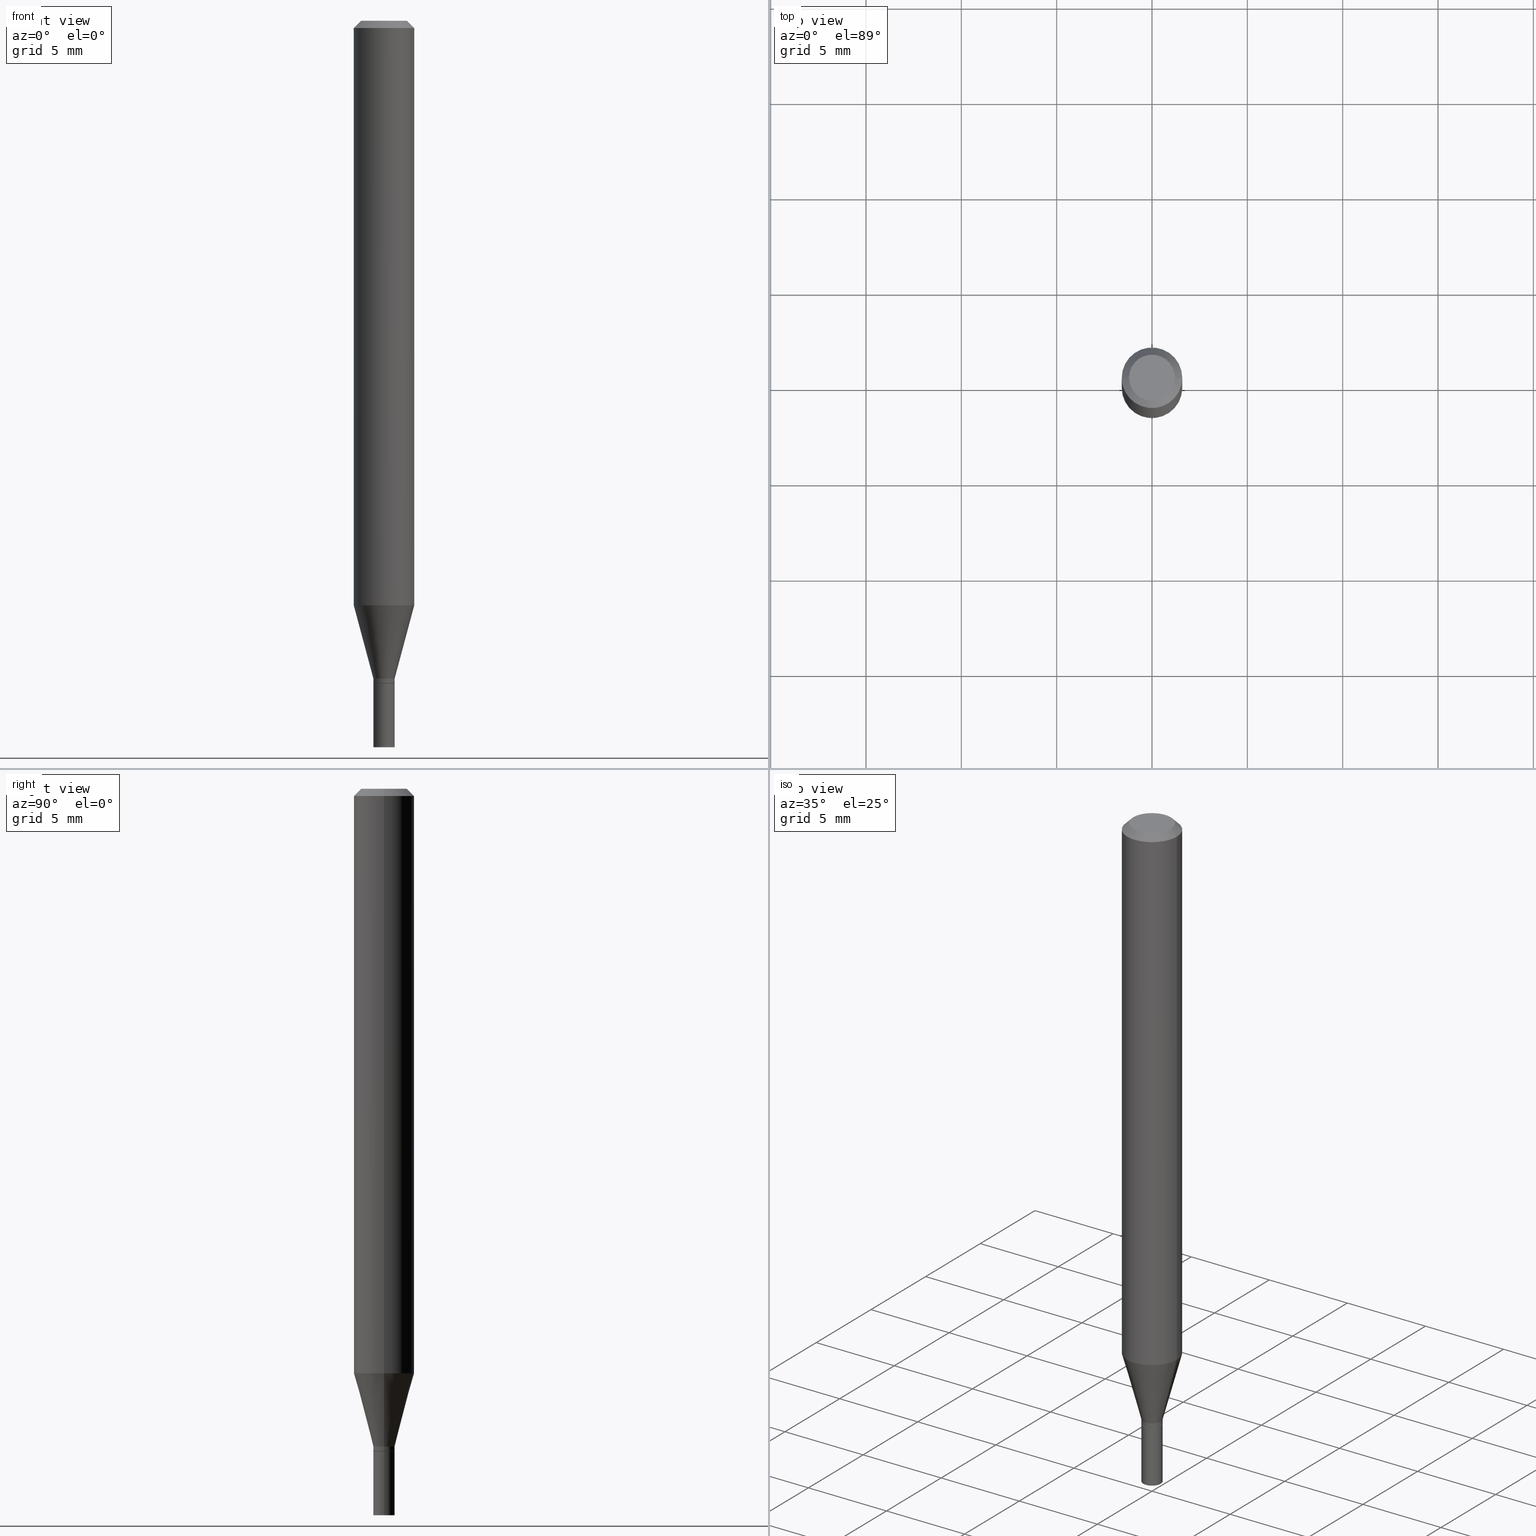
[diagram: canonical four-view strip — front | top / right | iso, engineering-drawing reading convention]
A machine part, canonical four-view strip (front | top / right | iso — engineering-drawing reading convention). The complete STEP part file that produces these views, byte-faithful:
ISO-10303-21;
HEADER;
FILE_DESCRIPTION (( 'STEP AP203' ),
    '1' );
FILE_NAME ('02473.STEP',
    '2024-03-18T20:48:39',
    ( '' ),
    ( '' ),
    'SwSTEP 2.0',
    'SolidWorks 2023',
    '' );
FILE_SCHEMA (( 'CONFIG_CONTROL_DESIGN' ));
ENDSEC;

DATA;
#1 = DIRECTION ( 'NONE',  ( 0.7071067811865656694, -2.468850131082446387E-15, 0.7071067811865294761 ) ) ;
#2 = COORDINATED_UNIVERSAL_TIME_OFFSET ( 5, 0, .BEHIND. ) ;
#3 = DIRECTION ( 'NONE',  ( -2.445468806185136597E-29, 3.491481338843145583E-15, 1.000000000000000000 ) ) ;
#4 = CC_DESIGN_PERSON_AND_ORGANIZATION_ASSIGNMENT ( #307, #378, ( #339 ) ) ;
#5 = CARTESIAN_POINT ( 'NONE',  ( 3.345401326861266963E-29, -4.776346471537423880E-15, -1.368000000000000105 ) ) ;
#6 = CARTESIAN_POINT ( 'NONE',  ( 2.951318778562602676E-29, -4.213701035264222282E-15, -1.206851942293460711 ) ) ;
#7 = EDGE_CURVE ( 'NONE', #160, #166, #122, .T. ) ;
#8 = CARTESIAN_POINT ( 'NONE',  ( 3.668203209277705088E-31, -5.237222008264718399E-17, -0.01499999999999999944 ) ) ;
#9 = VECTOR ( 'NONE', #84, 39.37007874015747433 ) ;
#10 = CC_DESIGN_SECURITY_CLASSIFICATION ( #421, ( #33 ) ) ;
#11 = DIRECTION ( 'NONE',  ( -2.445468806185136877E-29, 3.491481338843145188E-15, 1.000000000000000000 ) ) ;
#12 = CYLINDRICAL_SURFACE ( 'NONE', #286, 0.02199999999999999872 ) ;
#13 = ORIENTED_EDGE ( 'NONE', *, *, #359, .F. ) ;
#14 = EDGE_LOOP ( 'NONE', ( #213, #128 ) ) ;
#15 = DIRECTION ( 'NONE',  ( 1.000000000000000000, -6.982962677686266711E-15, 0.000000000000000000 ) ) ;
#16 = DIRECTION ( 'NONE',  ( -2.438088387897960049E-29, 3.491481338843145188E-15, 1.000000000000000000 ) ) ;
#17 = AXIS2_PLACEMENT_3D ( 'NONE', #151, #3, #142 ) ;
#18 = CARTESIAN_POINT ( 'NONE',  ( -0.02149999999999999481, -4.620930556174890609E-15, -1.368000000000000105 ) ) ;
#19 = CC_DESIGN_DATE_AND_TIME_ASSIGNMENT ( #465, #178, ( #269 ) ) ;
#20 = CARTESIAN_POINT ( 'NONE',  ( 3.345401326861266963E-29, -4.776346471537423880E-15, -1.368000000000000105 ) ) ;
#21 = CARTESIAN_POINT ( 'NONE',  ( 3.320946638799415978E-29, -4.741431658148991442E-15, -1.358000000000000096 ) ) ;
#22 = APPLICATION_PROTOCOL_DEFINITION ( 'international standard', 'config_control_design', 1994, #358 ) ;
#23 = EDGE_LOOP ( 'NONE', ( #193, #65, #329, #105 ) ) ;
#24 = LINE ( 'NONE', #241, #221 ) ;
#25 = DIMENSIONAL_EXPONENTS ( 1.000000000000000000, 0.000000000000000000, 0.000000000000000000, 0.000000000000000000, 0.000000000000000000, 0.000000000000000000, 0.000000000000000000 ) ;
#26 = EDGE_CURVE ( 'NONE', #160, #440, #373, .T. ) ;
#27 = DATE_AND_TIME ( #248, #124 ) ;
#28 = COORDINATED_UNIVERSAL_TIME_OFFSET ( 5, 0, .BEHIND. ) ;
#29 = PLANE ( 'NONE',  #394 ) ;
#30 = EDGE_CURVE ( 'NONE', #166, #143, #59, .T. ) ;
#31 = DIRECTION ( 'NONE',  ( 1.000000000000000000, -6.982962677686269866E-15, 0.000000000000000000 ) ) ;
#32 = AXIS2_PLACEMENT_3D ( 'NONE', #214, #350, #31 ) ;
#33 = PRODUCT_DEFINITION_FORMATION_WITH_SPECIFIED_SOURCE ( 'ANY', '', #339, .NOT_KNOWN. ) ;
#34 = PERSON ( 'UNSPECIFIED', 'UNSPECIFIED', 'UNSPECIFIED', ('UNSPECIFIED'), ('UNSPECIFIED'), ('UNSPECIFIED') ) ;
#35 = CARTESIAN_POINT ( 'NONE',  ( -0.02199999999999999872, -4.850464838033848848E-15, -1.500000000000000222 ) ) ;
#36 = ADVANCED_FACE ( 'NONE', ( #202 ), #168, .T. ) ;
#37 = ADVANCED_FACE ( 'NONE', ( #158 ), #337, .T. ) ;
#38 = CIRCLE ( 'NONE', #256, 0.02199999999999992240 ) ;
#39 = CARTESIAN_POINT ( 'NONE',  ( 3.668203209277705088E-31, -5.237222008264718399E-17, -0.01499999999999999944 ) ) ;
#40 = LINE ( 'NONE', #324, #154 ) ;
#41 = DIRECTION ( 'NONE',  ( -2.445468806185136597E-29, 3.491481338843145583E-15, 1.000000000000000000 ) ) ;
#42 = CC_DESIGN_PERSON_AND_ORGANIZATION_ASSIGNMENT ( #320, #388, ( #33 ) ) ;
#43 = CARTESIAN_POINT ( 'NONE',  ( 3.668203209277704895E-29, -5.237222008264718177E-15, -1.500000000000000222 ) ) ;
#44 = CARTESIAN_POINT ( 'NONE',  ( 0.000000000000000000, 0.000000000000000000, 0.000000000000000000 ) ) ;
#45 = DIRECTION ( 'NONE',  ( -1.000000000000000000, 6.982962677686265922E-15, -4.876176775795935793E-29 ) ) ;
#46 = FACE_OUTER_BOUND ( 'NONE', #424, .T. ) ;
#47 = AXIS2_PLACEMENT_3D ( 'NONE', #251, #433, #309 ) ;
#48 = ORIENTED_EDGE ( 'NONE', *, *, #182, .T. ) ;
#49 = DIRECTION ( 'NONE',  ( -2.445468806185136597E-29, 3.491481338843145583E-15, 1.000000000000000000 ) ) ;
#50 = ORIENTED_EDGE ( 'NONE', *, *, #459, .T. ) ;
#51 = DIRECTION ( 'NONE',  ( -2.445468806185136877E-29, 3.491481338843145188E-15, 1.000000000000000000 ) ) ;
#52 = DIRECTION ( 'NONE',  ( -2.445468806185136597E-29, 3.491481338843145583E-15, 1.000000000000000000 ) ) ;
#53 = ORIENTED_EDGE ( 'NONE', *, *, #445, .F. ) ;
#54 = CARTESIAN_POINT ( 'NONE',  ( 0.000000000000000000, 0.000000000000000000, 0.000000000000000000 ) ) ;
#55 = ADVANCED_FACE ( 'NONE', ( #274 ), #335, .T. ) ;
#56 = DIRECTION ( 'NONE',  ( -2.445468806185136597E-29, 3.491481338843145583E-15, 1.000000000000000000 ) ) ;
#57 = ORIENTED_EDGE ( 'NONE', *, *, #381, .T. ) ;
#58 = AXIS2_PLACEMENT_3D ( 'NONE', #100, #414, #406 ) ;
#59 = LINE ( 'NONE', #306, #115 ) ;
#60 = DIRECTION ( 'NONE',  ( -2.445468806185136597E-29, 3.491481338843145583E-15, 1.000000000000000000 ) ) ;
#61 = ORIENTED_EDGE ( 'NONE', *, *, #210, .T. ) ;
#62 = CARTESIAN_POINT ( 'NONE',  ( 0.000000000000000000, 0.000000000000000000, 0.000000000000000000 ) ) ;
#63 = ORIENTED_EDGE ( 'NONE', *, *, #117, .T. ) ;
#64 = CLOSED_SHELL ( 'NONE', ( #297, #367, #393, #36, #37, #280, #88, #150, #333, #398, #188, #55 ) ) ;
#65 = ORIENTED_EDGE ( 'NONE', *, *, #30, .T. ) ;
#66 = CONICAL_SURFACE ( 'NONE', #458, 0.02149999999999999481, 0.7853981633974739252 ) ;
#67 = DATE_AND_TIME ( #136, #287 ) ;
#68 = VERTEX_POINT ( 'NONE', #18 ) ;
#69 = CARTESIAN_POINT ( 'NONE',  ( 0.04749999999999999362, -4.035134999187581581E-16, -1.989643822619502098E-16 ) ) ;
#70 =( NAMED_UNIT ( * ) PLANE_ANGLE_UNIT ( ) SI_UNIT ( $, .RADIAN. ) );
#71 = EDGE_CURVE ( 'NONE', #166, #160, #355, .T. ) ;
#72 = AXIS2_PLACEMENT_3D ( 'NONE', #39, #41, #183 ) ;
#73 = APPROVAL_DATE_TIME ( #255, #319 ) ;
#74 = APPROVAL ( #450, 'UNSPECIFIED' ) ;
#75 = CARTESIAN_POINT ( 'NONE',  ( -0.02199999999999999872, -4.850464838033848848E-15, -1.368000000000000105 ) ) ;
#76 = PERSON_AND_ORGANIZATION ( #34, #310 ) ;
#77 = CARTESIAN_POINT ( 'NONE',  ( -0.06250000000000000000, 4.440892098500626162E-16, -3.074334431409316114E-30 ) ) ;
#78 = CIRCLE ( 'NONE', #72, 0.06250000000000000000 ) ;
#79 = CARTESIAN_POINT ( 'NONE',  ( 3.345401326861266963E-29, -4.776346471537423880E-15, -1.368000000000000105 ) ) ;
#80 = DIRECTION ( 'NONE',  ( -2.445468806185136597E-29, 3.491481338843145583E-15, 1.000000000000000000 ) ) ;
#81 = LINE ( 'NONE', #396, #9 ) ;
#82 = ORIENTED_EDGE ( 'NONE', *, *, #227, .F. ) ;
#83 = CIRCLE ( 'NONE', #260, 0.04749999999999999362 ) ;
#84 = DIRECTION ( 'NONE',  ( -0.2588190451025213501, 5.211531920934551042E-15, 0.9659258262890682012 ) ) ;
#85 = ORIENTED_EDGE ( 'NONE', *, *, #152, .T. ) ;
#86 = CARTESIAN_POINT ( 'NONE',  ( 0.02199999999999992240, -4.895056837058089278E-15, -1.358000000000000096 ) ) ;
#87 = CARTESIAN_POINT ( 'NONE',  ( 3.320946638799415978E-29, -4.741431658148991442E-15, -1.358000000000000096 ) ) ;
#88 = ADVANCED_FACE ( 'NONE', ( #197 ), #372, .T. ) ;
#89 = VERTEX_POINT ( 'NONE', #129 ) ;
#90 = ORIENTED_EDGE ( 'NONE', *, *, #258, .T. ) ;
#91 = ORIENTED_EDGE ( 'NONE', *, *, #445, .T. ) ;
#92 = EDGE_LOOP ( 'NONE', ( #365, #61, #97, #343 ) ) ;
#93 = AXIS2_PLACEMENT_3D ( 'NONE', #399, #230, #371 ) ;
#94 = ORIENTED_EDGE ( 'NONE', *, *, #71, .F. ) ;
#95 = DIRECTION ( 'NONE',  ( 0.2588190451025213501, 1.565188264969621968E-15, 0.9659258262890682012 ) ) ;
#96 = EDGE_CURVE ( 'NONE', #440, #463, #437, .T. ) ;
#97 = ORIENTED_EDGE ( 'NONE', *, *, #96, .T. ) ;
#98 = DIRECTION ( 'NONE',  ( -2.445468806185136597E-29, 3.491481338843145583E-15, 1.000000000000000000 ) ) ;
#99 = ORIENTED_EDGE ( 'NONE', *, *, #220, .F. ) ;
#100 = CARTESIAN_POINT ( 'NONE',  ( 0.000000000000000000, 0.000000000000000000, 0.000000000000000000 ) ) ;
#101 = ORIENTED_EDGE ( 'NONE', *, *, #182, .F. ) ;
#102 = VERTEX_POINT ( 'NONE', #405 ) ;
#103 = DIRECTION ( 'NONE',  ( -2.445468806185136597E-29, 3.491481338843145583E-15, 1.000000000000000000 ) ) ;
#104 = EDGE_CURVE ( 'NONE', #102, #294, #24, .T. ) ;
#105 = ORIENTED_EDGE ( 'NONE', *, *, #26, .F. ) ;
#106 = PERSON_AND_ORGANIZATION_ROLE ( 'creator' ) ;
#107 = DIRECTION ( 'NONE',  ( 0.7071067811865522357, -7.319954787623271823E-15, -0.7071067811865427988 ) ) ;
#108 = CARTESIAN_POINT ( 'NONE',  ( -0.02149999999999999481, -4.623579783349001810E-15, -1.368000000000000105 ) ) ;
#109 = CALENDAR_DATE ( 2024, 18, 3 ) ;
#110 = CALENDAR_DATE ( 2024, 18, 3 ) ;
#111 = CONICAL_SURFACE ( 'NONE', #175, 0.06250000000000000000, 0.7853981633974549403 ) ;
#112 = ADVANCED_FACE ( 'NONE', ( #376 ), #206, .F. ) ;
#113 = AXIS2_PLACEMENT_3D ( 'NONE', #370, #16, #161 ) ;
#114 = CARTESIAN_POINT ( 'NONE',  ( -0.06250000000000000000, -1.688947417823372262E-15, -0.01499999999999999944 ) ) ;
#115 = VECTOR ( 'NONE', #342, 39.37007874015748143 ) ;
#116 = VECTOR ( 'NONE', #95, 39.37007874015747433 ) ;
#117 = EDGE_CURVE ( 'NONE', #68, #377, #426, .T. ) ;
#118 = DIRECTION ( 'NONE',  ( 1.000000000000000000, -6.982962677686270655E-15, 0.000000000000000000 ) ) ;
#119 = CARTESIAN_POINT ( 'NONE',  ( -0.06250000000000000000, 3.840629472727444916E-16, -0.01499999999999999944 ) ) ;
#120 = ORIENTED_EDGE ( 'NONE', *, *, #137, .F. ) ;
#121 = DIRECTION ( 'NONE',  ( -2.445468806185136877E-29, 3.491481338843145188E-15, 1.000000000000000000 ) ) ;
#122 = CIRCLE ( 'NONE', #315, 0.02199999999999992240 ) ;
#123 = DIRECTION ( 'NONE',  ( -2.445468806185136877E-29, 3.491481338843145188E-15, 1.000000000000000000 ) ) ;
#124 = LOCAL_TIME ( 16, 48, 39.00000000000000000, #28 ) ;
#125 = ORIENTED_EDGE ( 'NONE', *, *, #220, .T. ) ;
#126 = VERTEX_POINT ( 'NONE', #75 ) ;
#127 = EDGE_LOOP ( 'NONE', ( #447, #120, #125, #85 ) ) ;
#128 = ORIENTED_EDGE ( 'NONE', *, *, #416, .T. ) ;
#129 = CARTESIAN_POINT ( 'NONE',  ( -0.04749999999999999362, 3.578768372314206562E-16, -1.989643822619551895E-16 ) ) ;
#130 = AXIS2_PLACEMENT_3D ( 'NONE', #43, #356, #184 ) ;
#131 = VERTEX_POINT ( 'NONE', #35 ) ;
#132 = CIRCLE ( 'NONE', #257, 0.02149999999999999481 ) ;
#133 = PERSON_AND_ORGANIZATION ( #34, #310 ) ;
#134 = DIRECTION ( 'NONE',  ( 2.445468806185136597E-29, -3.491481338843145583E-15, -1.000000000000000000 ) ) ;
#135 = ORIENTED_EDGE ( 'NONE', *, *, #7, .F. ) ;
#136 = CALENDAR_DATE ( 2024, 18, 3 ) ;
#137 = EDGE_CURVE ( 'NONE', #89, #283, #83, .T. ) ;
#138 = ORIENTED_EDGE ( 'NONE', *, *, #104, .F. ) ;
#139 = AXIS2_PLACEMENT_3D ( 'NONE', #326, #223, #253 ) ;
#140 = DATE_TIME_ROLE ( 'classification_date' ) ;
#141 = AXIS2_PLACEMENT_3D ( 'NONE', #457, #134, #276 ) ;
#142 = DIRECTION ( 'NONE',  ( 1.000000000000000000, -6.982962677686266711E-15, 4.876176775795934672E-29 ) ) ;
#143 = VERTEX_POINT ( 'NONE', #353 ) ;
#144 = APPROVAL_DATE_TIME ( #67, #74 ) ;
#145 = DESIGN_CONTEXT ( 'detailed design', #384, 'design' ) ;
#146 =( LENGTH_UNIT ( ) NAMED_UNIT ( * ) SI_UNIT ( $, .METRE. ) );
#147 = EDGE_CURVE ( 'NONE', #377, #160, #259, .T. ) ;
#148 = PERSON_AND_ORGANIZATION ( #34, #310 ) ;
#149 = CARTESIAN_POINT ( 'NONE',  ( -0.06250000000000000000, -3.769611825414159666E-15, -1.206851942293460711 ) ) ;
#150 = ADVANCED_FACE ( 'NONE', ( #289 ), #111, .T. ) ;
#151 = CARTESIAN_POINT ( 'NONE',  ( 0.000000000000000000, 0.000000000000000000, 0.000000000000000000 ) ) ;
#152 = EDGE_CURVE ( 'NONE', #375, #252, #78, .T. ) ;
#153 = DIRECTION ( 'NONE',  ( 1.000000000000000000, -6.982962677686270655E-15, 0.000000000000000000 ) ) ;
#154 = VECTOR ( 'NONE', #11, 39.37007874015748143 ) ;
#155 = DIRECTION ( 'NONE',  ( -2.445468806185136877E-29, 3.491481338843145188E-15, 1.000000000000000000 ) ) ;
#156 = CARTESIAN_POINT ( 'NONE',  ( 0.000000000000000000, 0.000000000000000000, 0.000000000000000000 ) ) ;
#157 = ORIENTED_EDGE ( 'NONE', *, *, #349, .F. ) ;
#158 = FACE_OUTER_BOUND ( 'NONE', #347, .T. ) ;
#159 = CARTESIAN_POINT ( 'NONE',  ( 3.668203209277705088E-31, -5.237222008264718399E-17, -0.01499999999999999944 ) ) ;
#160 = VERTEX_POINT ( 'NONE', #285 ) ;
#161 = DIRECTION ( 'NONE',  ( 1.000000000000000000, -6.982962677686265922E-15, 4.876176775795935793E-29 ) ) ;
#162 = CONICAL_SURFACE ( 'NONE', #32, 0.02199999999999992240, 0.2617993877991500740 ) ;
#163 = DIRECTION ( 'NONE',  ( 1.000000000000000000, -6.982962677686269866E-15, 0.000000000000000000 ) ) ;
#164 = DIRECTION ( 'NONE',  ( -2.438088387897960049E-29, 3.491481338843145188E-15, 1.000000000000000000 ) ) ;
#165 = ADVANCED_BREP_SHAPE_REPRESENTATION ( '02473', ( #304, #461, #58 ), #411 ) ;
#166 = VERTEX_POINT ( 'NONE', #430 ) ;
#167 = EDGE_LOOP ( 'NONE', ( #302, #233, #267, #99 ) ) ;
#168 = CYLINDRICAL_SURFACE ( 'NONE', #400, 0.06250000000000000000 ) ;
#169 = CIRCLE ( 'NONE', #431, 0.02199999999999999872 ) ;
#170 = CC_DESIGN_APPROVAL ( #319, ( #33 ) ) ;
#171 = ADVANCED_FACE ( 'NONE', ( #225 ), #361, .T. ) ;
#172 = EDGE_CURVE ( 'NONE', #252, #375, #229, .T. ) ;
#173 = DIRECTION ( 'NONE',  ( -2.445468806185136597E-29, 3.491481338843145583E-15, 1.000000000000000000 ) ) ;
#174 = EDGE_LOOP ( 'NONE', ( #13, #48, #249, #190 ) ) ;
#175 = AXIS2_PLACEMENT_3D ( 'NONE', #8, #434, #354 ) ;
#176 = CONICAL_SURFACE ( 'NONE', #141, 0.06250000000000000000, 0.7853981633974549403 ) ;
#177 = CC_DESIGN_DATE_AND_TIME_ASSIGNMENT ( #27, #140, ( #421 ) ) ;
#178 = DATE_TIME_ROLE ( 'creation_date' ) ;
#179 = CARTESIAN_POINT ( 'NONE',  ( 0.02149999999999999481, -4.926480169107677920E-15, -1.368000000000000105 ) ) ;
#180 = AXIS2_PLACEMENT_3D ( 'NONE', #54, #303, #446 ) ;
#181 = CARTESIAN_POINT ( 'NONE',  ( 3.345401326861266963E-29, -4.776346471537423880E-15, -1.368000000000000105 ) ) ;
#182 = EDGE_CURVE ( 'NONE', #131, #102, #238, .T. ) ;
#183 = DIRECTION ( 'NONE',  ( 1.000000000000000000, -6.982962677686266711E-15, 0.000000000000000000 ) ) ;
#184 = DIRECTION ( 'NONE',  ( 1.000000000000000000, -6.982962677686245411E-15, 0.000000000000000000 ) ) ;
#185 = DIRECTION ( 'NONE',  ( -2.445468806185136597E-29, 3.491481338843145583E-15, 1.000000000000000000 ) ) ;
#186 = FACE_OUTER_BOUND ( 'NONE', #341, .T. ) ;
#187 = AXIS2_PLACEMENT_3D ( 'NONE', #6, #103, #153 ) ;
#188 = ADVANCED_FACE ( 'NONE', ( #46 ), #66, .T. ) ;
#189 = DIRECTION ( 'NONE',  ( -2.445468806185136597E-29, 3.491481338843145583E-15, 1.000000000000000000 ) ) ;
#190 = ORIENTED_EDGE ( 'NONE', *, *, #268, .F. ) ;
#191 = CARTESIAN_POINT ( 'NONE',  ( 0.06250000000000000000, -4.888073874380388472E-16, -0.01499999999999999944 ) ) ;
#192 = SECURITY_CLASSIFICATION_LEVEL ( 'unclassified' ) ;
#193 = ORIENTED_EDGE ( 'NONE', *, *, #7, .T. ) ;
#194 = DIRECTION ( 'NONE',  ( -2.445468806185136597E-29, 3.491481338843145583E-15, 1.000000000000000000 ) ) ;
#195 = CARTESIAN_POINT ( 'NONE',  ( 2.951318778562602676E-29, -4.213701035264222282E-15, -1.206851942293460711 ) ) ;
#196 = ORIENTED_EDGE ( 'NONE', *, *, #459, .F. ) ;
#197 = FACE_OUTER_BOUND ( 'NONE', #234, .T. ) ;
#198 = AXIS2_PLACEMENT_3D ( 'NONE', #181, #173, #460 ) ;
#199 = FACE_OUTER_BOUND ( 'NONE', #231, .T. ) ;
#200 = VECTOR ( 'NONE', #462, 39.37007874015748143 ) ;
#201 = DIRECTION ( 'NONE',  ( 1.000000000000000000, -6.982962677686266711E-15, 0.000000000000000000 ) ) ;
#202 = FACE_OUTER_BOUND ( 'NONE', #417, .T. ) ;
#203 = EDGE_CURVE ( 'NONE', #143, #262, #81, .T. ) ;
#204 = CARTESIAN_POINT ( 'NONE',  ( 0.02199999999999992240, -4.895056837058089278E-15, -1.358000000000000096 ) ) ;
#205 = PERSON_AND_ORGANIZATION ( #34, #310 ) ;
#206 = PLANE ( 'NONE',  #113 ) ;
#207 = SHAPE_DEFINITION_REPRESENTATION ( #277, #165 ) ;
#208 = APPROVAL_ROLE ( '' ) ;
#209 = AXIS2_PLACEMENT_3D ( 'NONE', #44, #185, #254 ) ;
#210 = EDGE_CURVE ( 'NONE', #143, #440, #38, .T. ) ;
#211 =( NAMED_UNIT ( * ) SI_UNIT ( $, .STERADIAN. ) SOLID_ANGLE_UNIT ( ) );
#212 = ORIENTED_EDGE ( 'NONE', *, *, #359, .T. ) ;
#213 = ORIENTED_EDGE ( 'NONE', *, *, #137, .T. ) ;
#214 = CARTESIAN_POINT ( 'NONE',  ( 3.320946638799415978E-29, -4.741431658148991442E-15, -1.358000000000000096 ) ) ;
#215 = ORIENTED_EDGE ( 'NONE', *, *, #117, .F. ) ;
#216 = EDGE_CURVE ( 'NONE', #294, #126, #169, .T. ) ;
#217 = ORIENTED_EDGE ( 'NONE', *, *, #348, .T. ) ;
#218 = VECTOR ( 'NONE', #1, 39.37007874015748143 ) ;
#219 = LINE ( 'NONE', #77, #351 ) ;
#220 = EDGE_CURVE ( 'NONE', #89, #375, #232, .T. ) ;
#221 = VECTOR ( 'NONE', #121, 39.37007874015748143 ) ;
#222 = CC_DESIGN_APPROVAL ( #74, ( #421 ) ) ;
#223 = DIRECTION ( 'NONE',  ( 2.438088387897960049E-29, -3.491481338843145188E-15, -1.000000000000000000 ) ) ;
#224 = FACE_OUTER_BOUND ( 'NONE', #23, .T. ) ;
#225 = FACE_OUTER_BOUND ( 'NONE', #317, .T. ) ;
#226 = FACE_OUTER_BOUND ( 'NONE', #14, .T. ) ;
#227 = EDGE_CURVE ( 'NONE', #463, #262, #296, .T. ) ;
#228 = CARTESIAN_POINT ( 'NONE',  ( 3.345401326861266963E-29, -4.776346471537423880E-15, -1.368000000000000105 ) ) ;
#229 = CIRCLE ( 'NONE', #379, 0.06250000000000000000 ) ;
#230 = DIRECTION ( 'NONE',  ( -2.445468806185136597E-29, 3.491481338843145583E-15, 1.000000000000000000 ) ) ;
#231 = EDGE_LOOP ( 'NONE', ( #53, #215 ) ) ;
#232 = LINE ( 'NONE', #119, #322 ) ;
#233 = ORIENTED_EDGE ( 'NONE', *, *, #314, .T. ) ;
#234 = EDGE_LOOP ( 'NONE', ( #313, #295, #90, #334 ) ) ;
#235 = CARTESIAN_POINT ( 'NONE',  ( 3.345401326861266963E-29, -4.776346471537423880E-15, -1.368000000000000105 ) ) ;
#236 = ADVANCED_FACE ( 'NONE', ( #263 ), #12, .T. ) ;
#237 = ORIENTED_EDGE ( 'NONE', *, *, #96, .F. ) ;
#238 = CIRCLE ( 'NONE', #93, 0.02199999999999999872 ) ;
#239 = LOCAL_TIME ( 16, 48, 39.00000000000000000, #2 ) ;
#240 = ORIENTED_EDGE ( 'NONE', *, *, #216, .F. ) ;
#241 = CARTESIAN_POINT ( 'NONE',  ( 0.02199999999999999872, -1.536251789090978361E-16, 1.072758890675105930E-30 ) ) ;
#242 = DIRECTION ( 'NONE',  ( -2.445468806185136597E-29, 3.491481338843145583E-15, 1.000000000000000000 ) ) ;
#243 = APPROVAL_STATUS ( 'not_yet_approved' ) ;
#244 = CC_DESIGN_PERSON_AND_ORGANIZATION_ASSIGNMENT ( #205, #404, ( #421 ) ) ;
#245 =( CONVERSION_BASED_UNIT ( 'INCH', #247 ) LENGTH_UNIT ( ) NAMED_UNIT ( #25 ) );
#246 = AXIS2_PLACEMENT_3D ( 'NONE', #292, #332, #444 ) ;
#247 = LENGTH_MEASURE_WITH_UNIT ( LENGTH_MEASURE( 0.02539999999999999897 ), #146 );
#248 = CALENDAR_DATE ( 2024, 18, 3 ) ;
#249 = ORIENTED_EDGE ( 'NONE', *, *, #104, .T. ) ;
#250 = COORDINATED_UNIVERSAL_TIME_OFFSET ( 5, 0, .BEHIND. ) ;
#251 = CARTESIAN_POINT ( 'NONE',  ( 3.320946638799415978E-29, -4.741431658148991442E-15, -1.358000000000000096 ) ) ;
#252 = VERTEX_POINT ( 'NONE', #191 ) ;
#253 = DIRECTION ( 'NONE',  ( -1.000000000000000000, 6.982962677686265922E-15, -4.876176775795935793E-29 ) ) ;
#254 = DIRECTION ( 'NONE',  ( 1.000000000000000000, -6.982962677686265922E-15, 4.876176775795936353E-29 ) ) ;
#255 = DATE_AND_TIME ( #109, #338 ) ;
#256 = AXIS2_PLACEMENT_3D ( 'NONE', #87, #189, #368 ) ;
#257 = AXIS2_PLACEMENT_3D ( 'NONE', #235, #56, #201 ) ;
#258 = EDGE_CURVE ( 'NONE', #463, #252, #331, .T. ) ;
#259 = LINE ( 'NONE', #179, #218 ) ;
#260 = AXIS2_PLACEMENT_3D ( 'NONE', #357, #80, #325 ) ;
#261 = CC_DESIGN_PERSON_AND_ORGANIZATION_ASSIGNMENT ( #148, #385, ( #33 ) ) ;
#262 = VERTEX_POINT ( 'NONE', #149 ) ;
#263 = FACE_OUTER_BOUND ( 'NONE', #174, .T. ) ;
#264 = DIRECTION ( 'NONE',  ( 1.000000000000000000, -6.982962677686265922E-15, 4.876176775795936353E-29 ) ) ;
#265 = ORIENTED_EDGE ( 'NONE', *, *, #172, .F. ) ;
#266 = DIRECTION ( 'NONE',  ( -2.445468806185136597E-29, 3.491481338843145583E-15, 1.000000000000000000 ) ) ;
#267 = ORIENTED_EDGE ( 'NONE', *, *, #172, .T. ) ;
#268 = EDGE_CURVE ( 'NONE', #126, #294, #366, .T. ) ;
#269 = PRODUCT_DEFINITION ( 'UNKNOWN', '', #33, #145 ) ;
#270 = ORIENTED_EDGE ( 'NONE', *, *, #147, .T. ) ;
#271 = CARTESIAN_POINT ( 'NONE',  ( 4.865611903635008365E-45, -6.946804277620623666E-31, -1.989643822619527736E-16 ) ) ;
#272 = EDGE_LOOP ( 'NONE', ( #91, #50, #135, #456 ) ) ;
#273 = CONICAL_SURFACE ( 'NONE', #386, 0.02149999999999999481, 0.7853981633974739252 ) ;
#274 = FACE_OUTER_BOUND ( 'NONE', #305, .T. ) ;
#275 = ADVANCED_FACE ( 'NONE', ( #186 ), #279, .F. ) ;
#276 = DIRECTION ( 'NONE',  ( -1.000000000000000000, 6.982962677686266711E-15, 0.000000000000000000 ) ) ;
#277 = PRODUCT_DEFINITION_SHAPE ( 'NONE', 'NONE',  #269 ) ;
#278 = VECTOR ( 'NONE', #107, 39.37007874015748143 ) ;
#279 = PLANE ( 'NONE',  #139 ) ;
#280 = ADVANCED_FACE ( 'NONE', ( #395 ), #162, .T. ) ;
#281 = APPROVAL_ROLE ( '' ) ;
#282 = PRODUCT_RELATED_PRODUCT_CATEGORY ( 'detail', '', ( #339 ) ) ;
#283 = VERTEX_POINT ( 'NONE', #69 ) ;
#284 = DIRECTION ( 'NONE',  ( -2.445468806185136597E-29, 3.491481338843145583E-15, 1.000000000000000000 ) ) ;
#285 = CARTESIAN_POINT ( 'NONE',  ( 0.02199999999999992240, -4.928225909777099423E-15, -1.367500000000000160 ) ) ;
#286 = AXIS2_PLACEMENT_3D ( 'NONE', #156, #435, #264 ) ;
#287 = LOCAL_TIME ( 16, 48, 39.00000000000000000, #250 ) ;
#288 = CARTESIAN_POINT ( 'NONE',  ( 0.06250000000000000000, -4.811533449433679005E-16, -0.01499999999999999944 ) ) ;
#289 = FACE_OUTER_BOUND ( 'NONE', #127, .T. ) ;
#290 = FACE_OUTER_BOUND ( 'NONE', #272, .T. ) ;
#291 = DIRECTION ( 'NONE',  ( 1.000000000000000000, -6.982962677686266711E-15, 0.000000000000000000 ) ) ;
#292 = CARTESIAN_POINT ( 'NONE',  ( 0.000000000000000000, 0.000000000000000000, 0.000000000000000000 ) ) ;
#293 = CARTESIAN_POINT ( 'NONE',  ( 3.345401326861266963E-29, -4.776346471537423880E-15, -1.368000000000000105 ) ) ;
#294 = VERTEX_POINT ( 'NONE', #327 ) ;
#295 = ORIENTED_EDGE ( 'NONE', *, *, #380, .T. ) ;
#296 = CIRCLE ( 'NONE', #346, 0.06250000000000000000 ) ;
#297 = ADVANCED_FACE ( 'NONE', ( #224 ), #362, .T. ) ;
#298 = APPROVAL_PERSON_ORGANIZATION ( #133, #299, #208 ) ;
#299 = APPROVAL ( #243, 'UNSPECIFIED' ) ;
#300 = ORIENTED_EDGE ( 'NONE', *, *, #210, .F. ) ;
#301 = DIRECTION ( 'NONE',  ( 1.000000000000000000, -6.982962677686265922E-15, 4.876176775795935793E-29 ) ) ;
#302 = ORIENTED_EDGE ( 'NONE', *, *, #416, .F. ) ;
#303 = DIRECTION ( 'NONE',  ( -2.445468806185136597E-29, 3.491481338843145583E-15, 1.000000000000000000 ) ) ;
#304 = MANIFOLD_SOLID_BREP ( 'Body-Move/Copy2[1]', #419 ) ;
#305 = EDGE_LOOP ( 'NONE', ( #412, #407, #311, #300 ) ) ;
#306 = CARTESIAN_POINT ( 'NONE',  ( -0.02199999999999992240, 1.563194018672214895E-16, -1.082165719856075386E-30 ) ) ;
#307 = PERSON_AND_ORGANIZATION ( #34, #310 ) ;
#308 = AXIS2_PLACEMENT_3D ( 'NONE', #21, #402, #448 ) ;
#309 = DIRECTION ( 'NONE',  ( 1.000000000000000000, -6.982962677686269866E-15, 0.000000000000000000 ) ) ;
#310 = ORGANIZATION ( 'UNSPECIFIED', 'UNSPECIFIED', '' ) ;
#311 = ORIENTED_EDGE ( 'NONE', *, *, #26, .T. ) ;
#312 = CARTESIAN_POINT ( 'NONE',  ( 0.06250000000000000000, -4.650136202619614741E-15, -1.206851942293460711 ) ) ;
#313 = ORIENTED_EDGE ( 'NONE', *, *, #348, .F. ) ;
#314 = EDGE_CURVE ( 'NONE', #283, #252, #423, .T. ) ;
#315 = AXIS2_PLACEMENT_3D ( 'NONE', #408, #98, #409 ) ;
#316 = AXIS2_PLACEMENT_3D ( 'NONE', #271, #60, #443 ) ;
#317 = EDGE_LOOP ( 'NONE', ( #397, #212, #240, #138 ) ) ;
#318 = LINE ( 'NONE', #108, #200 ) ;
#319 = APPROVAL ( #427, 'UNSPECIFIED' ) ;
#320 = PERSON_AND_ORGANIZATION ( #34, #310 ) ;
#321 = DIRECTION ( 'NONE',  ( -2.445468806185136597E-29, 3.491481338843145583E-15, 1.000000000000000000 ) ) ;
#322 = VECTOR ( 'NONE', #328, 39.37007874015748143 ) ;
#323 = CARTESIAN_POINT ( 'NONE',  ( 3.316907271900976096E-16, 0.04749999999999999362, -2.653275547260257586E-16 ) ) ;
#324 = CARTESIAN_POINT ( 'NONE',  ( -0.02199999999999999872, 1.563194018672220318E-16, -1.082165719856079240E-30 ) ) ;
#325 = DIRECTION ( 'NONE',  ( 1.000000000000000000, -6.982962677686267499E-15, 4.852736867747366768E-29 ) ) ;
#326 = CARTESIAN_POINT ( 'NONE',  ( 1.536251789091312887E-16, 0.02199999999999522129, -1.368000000000000105 ) ) ;
#327 = CARTESIAN_POINT ( 'NONE',  ( 0.02199999999999999872, -4.929971650446520927E-15, -1.368000000000000105 ) ) ;
#328 = DIRECTION ( 'NONE',  ( -0.7071067811865522357, 2.468850131082306364E-15, -0.7071067811865427988 ) ) ;
#329 = ORIENTED_EDGE ( 'NONE', *, *, #381, .F. ) ;
#330 = CARTESIAN_POINT ( 'NONE',  ( 0.02199999999999992240, -1.536251789090973184E-16, 1.072758890675101902E-30 ) ) ;
#331 = LINE ( 'NONE', #438, #420 ) ;
#332 = DIRECTION ( 'NONE',  ( -2.445468806185136597E-29, 3.491481338843145583E-15, 1.000000000000000000 ) ) ;
#333 = ADVANCED_FACE ( 'NONE', ( #226 ), #390, .F. ) ;
#334 = ORIENTED_EDGE ( 'NONE', *, *, #152, .F. ) ;
#335 = CYLINDRICAL_SURFACE ( 'NONE', #180, 0.02199999999999992240 ) ;
#336 = MECHANICAL_CONTEXT ( 'NONE', #358, 'mechanical' ) ;
#337 = CONICAL_SURFACE ( 'NONE', #308, 0.02199999999999992240, 0.2617993877991500740 ) ;
#338 = LOCAL_TIME ( 16, 48, 39.00000000000000000, #425 ) ;
#339 = PRODUCT ( '02473', '02473', '', ( #336 ) ) ;
#340 = ORIENTED_EDGE ( 'NONE', *, *, #216, .T. ) ;
#341 = EDGE_LOOP ( 'NONE', ( #340, #401 ) ) ;
#342 = DIRECTION ( 'NONE',  ( -2.445468806185136877E-29, 3.491481338843145188E-15, 1.000000000000000000 ) ) ;
#343 = ORIENTED_EDGE ( 'NONE', *, *, #380, .F. ) ;
#344 = PERSON_AND_ORGANIZATION ( #34, #310 ) ;
#345 = COORDINATED_UNIVERSAL_TIME_OFFSET ( 5, 0, .BEHIND. ) ;
#346 = AXIS2_PLACEMENT_3D ( 'NONE', #195, #266, #118 ) ;
#347 = EDGE_LOOP ( 'NONE', ( #57, #369, #82, #237 ) ) ;
#348 = EDGE_CURVE ( 'NONE', #262, #375, #219, .T. ) ;
#349 = EDGE_CURVE ( 'NONE', #102, #131, #364, .T. ) ;
#350 = DIRECTION ( 'NONE',  ( -2.445468806185136597E-29, 3.491481338843145583E-15, 1.000000000000000000 ) ) ;
#351 = VECTOR ( 'NONE', #155, 39.37007874015748143 ) ;
#352 = APPROVAL_DATE_TIME ( #389, #299 ) ;
#353 = CARTESIAN_POINT ( 'NONE',  ( -0.02199999999999992240, -4.177362040847964858E-15, -1.358000000000000096 ) ) ;
#354 = DIRECTION ( 'NONE',  ( -1.000000000000000000, 6.982962677686266711E-15, 0.000000000000000000 ) ) ;
#355 = CIRCLE ( 'NONE', #439, 0.02199999999999992240 ) ;
#356 = DIRECTION ( 'NONE',  ( -2.445468806185136597E-29, 3.491481338843145583E-15, 1.000000000000000000 ) ) ;
#357 = CARTESIAN_POINT ( 'NONE',  ( 4.865611903635008365E-45, -6.946804277620623666E-31, -1.989643822619527736E-16 ) ) ;
#358 = APPLICATION_CONTEXT ( 'configuration controlled 3d designs of mechanical parts and assemblies' ) ;
#359 = EDGE_CURVE ( 'NONE', #131, #126, #40, .T. ) ;
#360 = DIRECTION ( 'NONE',  ( 2.438088387897960049E-29, -3.491481338843145188E-15, -1.000000000000000000 ) ) ;
#361 = CYLINDRICAL_SURFACE ( 'NONE', #209, 0.02199999999999999872 ) ;
#362 = CYLINDRICAL_SURFACE ( 'NONE', #17, 0.02199999999999992240 ) ;
#363 = DIRECTION ( 'NONE',  ( -2.445468806185136597E-29, 3.491481338843145583E-15, 1.000000000000000000 ) ) ;
#364 = CIRCLE ( 'NONE', #130, 0.02199999999999999872 ) ;
#365 = ORIENTED_EDGE ( 'NONE', *, *, #203, .F. ) ;
#366 = CIRCLE ( 'NONE', #198, 0.02199999999999999872 ) ;
#367 = ADVANCED_FACE ( 'NONE', ( #290 ), #273, .T. ) ;
#368 = DIRECTION ( 'NONE',  ( 1.000000000000000000, -6.982962677686269866E-15, 0.000000000000000000 ) ) ;
#369 = ORIENTED_EDGE ( 'NONE', *, *, #203, .T. ) ;
#370 = CARTESIAN_POINT ( 'NONE',  ( 3.576687321579069994E-29, -5.368277968210015545E-15, -1.500000000000000222 ) ) ;
#371 = DIRECTION ( 'NONE',  ( 1.000000000000000000, -6.982962677686245411E-15, 0.000000000000000000 ) ) ;
#372 = CYLINDRICAL_SURFACE ( 'NONE', #246, 0.06250000000000000000 ) ;
#373 = LINE ( 'NONE', #330, #449 ) ;
#374 = LOCAL_TIME ( 16, 48, 39.00000000000000000, #345 ) ;
#375 = VERTEX_POINT ( 'NONE', #114 ) ;
#376 = FACE_OUTER_BOUND ( 'NONE', #455, .T. ) ;
#377 = VERTEX_POINT ( 'NONE', #383 ) ;
#378 = PERSON_AND_ORGANIZATION_ROLE ( 'design_owner' ) ;
#379 = AXIS2_PLACEMENT_3D ( 'NONE', #159, #49, #15 ) ;
#380 = EDGE_CURVE ( 'NONE', #262, #463, #410, .T. ) ;
#381 = EDGE_CURVE ( 'NONE', #440, #143, #452, .T. ) ;
#382 = ORIENTED_EDGE ( 'NONE', *, *, #258, .F. ) ;
#383 = CARTESIAN_POINT ( 'NONE',  ( 0.02149999999999999481, -4.926480169107677920E-15, -1.368000000000000105 ) ) ;
#384 = APPLICATION_CONTEXT ( 'configuration controlled 3d designs of mechanical parts and assemblies' ) ;
#385 = PERSON_AND_ORGANIZATION_ROLE ( 'design_supplier' ) ;
#386 = AXIS2_PLACEMENT_3D ( 'NONE', #5, #284, #429 ) ;
#387 = APPROVAL_PERSON_ORGANIZATION ( #344, #74, #415 ) ;
#388 = PERSON_AND_ORGANIZATION_ROLE ( 'creator' ) ;
#389 = DATE_AND_TIME ( #110, #374 ) ;
#390 = PLANE ( 'NONE',  #392 ) ;
#391 = DIRECTION ( 'NONE',  ( 1.000000000000000000, -6.982962677686266711E-15, 0.000000000000000000 ) ) ;
#392 = AXIS2_PLACEMENT_3D ( 'NONE', #323, #360, #45 ) ;
#393 = ADVANCED_FACE ( 'NONE', ( #454 ), #176, .T. ) ;
#394 = AXIS2_PLACEMENT_3D ( 'NONE', #20, #164, #301 ) ;
#395 = FACE_OUTER_BOUND ( 'NONE', #92, .T. ) ;
#396 = CARTESIAN_POINT ( 'NONE',  ( -0.02199999999999992240, -4.585112256281770051E-15, -1.358000000000000096 ) ) ;
#397 = ORIENTED_EDGE ( 'NONE', *, *, #349, .T. ) ;
#398 = ADVANCED_FACE ( 'NONE', ( #199 ), #29, .F. ) ;
#399 = CARTESIAN_POINT ( 'NONE',  ( 3.668203209277704895E-29, -5.237222008264718177E-15, -1.500000000000000222 ) ) ;
#400 = AXIS2_PLACEMENT_3D ( 'NONE', #62, #242, #442 ) ;
#401 = ORIENTED_EDGE ( 'NONE', *, *, #268, .T. ) ;
#402 = DIRECTION ( 'NONE',  ( -2.445468806185136597E-29, 3.491481338843145583E-15, 1.000000000000000000 ) ) ;
#403 = DIRECTION ( 'NONE',  ( 1.000000000000000000, -6.982962677686245411E-15, 0.000000000000000000 ) ) ;
#404 = PERSON_AND_ORGANIZATION_ROLE ( 'classification_officer' ) ;
#405 = CARTESIAN_POINT ( 'NONE',  ( 0.02199999999999999872, -5.390847187173816013E-15, -1.500000000000000222 ) ) ;
#406 = DIRECTION ( 'NONE',  ( 1.000000000000000000, 0.000000000000000000, 0.000000000000000000 ) ) ;
#407 = ORIENTED_EDGE ( 'NONE', *, *, #71, .T. ) ;
#408 = CARTESIAN_POINT ( 'NONE',  ( 3.344178592458174722E-29, -4.774600730868002376E-15, -1.367500000000000160 ) ) ;
#409 = DIRECTION ( 'NONE',  ( 1.000000000000000000, -6.982962677686269866E-15, 0.000000000000000000 ) ) ;
#410 = CIRCLE ( 'NONE', #187, 0.06250000000000000000 ) ;
#411 =( GEOMETRIC_REPRESENTATION_CONTEXT ( 3 ) GLOBAL_UNCERTAINTY_ASSIGNED_CONTEXT ( ( #418 ) ) GLOBAL_UNIT_ASSIGNED_CONTEXT ( ( #245, #70, #211 ) ) REPRESENTATION_CONTEXT ( 'NONE', 'WORKASPACE' ) );
#412 = ORIENTED_EDGE ( 'NONE', *, *, #30, .F. ) ;
#413 = CARTESIAN_POINT ( 'NONE',  ( 3.344178592458174722E-29, -4.774600730868002376E-15, -1.367500000000000160 ) ) ;
#414 = DIRECTION ( 'NONE',  ( 0.000000000000000000, 0.000000000000000000, 1.000000000000000000 ) ) ;
#415 = APPROVAL_ROLE ( '' ) ;
#416 = EDGE_CURVE ( 'NONE', #283, #89, #441, .T. ) ;
#417 = EDGE_LOOP ( 'NONE', ( #436, #217, #265, #382 ) ) ;
#418 = UNCERTAINTY_MEASURE_WITH_UNIT (LENGTH_MEASURE( 1.000000000000000082E-05 ), #245, 'distance_accuracy_value', 'NONE');
#419 = CLOSED_SHELL ( 'NONE', ( #171, #112, #236, #275 ) ) ;
#420 = VECTOR ( 'NONE', #123, 39.37007874015748143 ) ;
#421 = SECURITY_CLASSIFICATION ( '', '', #192 ) ;
#422 = PERSON_AND_ORGANIZATION ( #34, #310 ) ;
#423 = LINE ( 'NONE', #288, #278 ) ;
#424 = EDGE_LOOP ( 'NONE', ( #196, #63, #270, #94 ) ) ;
#425 = COORDINATED_UNIVERSAL_TIME_OFFSET ( 5, 0, .BEHIND. ) ;
#426 = CIRCLE ( 'NONE', #466, 0.02149999999999999481 ) ;
#427 = APPROVAL_STATUS ( 'not_yet_approved' ) ;
#428 = CC_DESIGN_PERSON_AND_ORGANIZATION_ASSIGNMENT ( #422, #106, ( #269 ) ) ;
#429 = DIRECTION ( 'NONE',  ( 1.000000000000000000, -6.982962677686266711E-15, 0.000000000000000000 ) ) ;
#430 = CARTESIAN_POINT ( 'NONE',  ( -0.02199999999999992240, -4.618281329000780985E-15, -1.367500000000000160 ) ) ;
#431 = AXIS2_PLACEMENT_3D ( 'NONE', #228, #363, #403 ) ;
#432 = CC_DESIGN_APPROVAL ( #299, ( #269 ) ) ;
#433 = DIRECTION ( 'NONE',  ( -2.445468806185136597E-29, 3.491481338843145583E-15, 1.000000000000000000 ) ) ;
#434 = DIRECTION ( 'NONE',  ( 2.445468806185136597E-29, -3.491481338843145583E-15, -1.000000000000000000 ) ) ;
#435 = DIRECTION ( 'NONE',  ( -2.445468806185136597E-29, 3.491481338843145583E-15, 1.000000000000000000 ) ) ;
#436 = ORIENTED_EDGE ( 'NONE', *, *, #227, .T. ) ;
#437 = LINE ( 'NONE', #86, #116 ) ;
#438 = CARTESIAN_POINT ( 'NONE',  ( 0.06250000000000000000, -4.364351673553916694E-16, 3.047610484872459871E-30 ) ) ;
#439 = AXIS2_PLACEMENT_3D ( 'NONE', #413, #194, #163 ) ;
#440 = VERTEX_POINT ( 'NONE', #204 ) ;
#441 = CIRCLE ( 'NONE', #316, 0.04749999999999999362 ) ;
#442 = DIRECTION ( 'NONE',  ( 1.000000000000000000, -6.982962677686266711E-15, 4.876176775795935793E-29 ) ) ;
#443 = DIRECTION ( 'NONE',  ( 1.000000000000000000, -6.982962677686267499E-15, 4.852736867747366768E-29 ) ) ;
#444 = DIRECTION ( 'NONE',  ( 1.000000000000000000, -6.982962677686266711E-15, 4.876176775795935793E-29 ) ) ;
#445 = EDGE_CURVE ( 'NONE', #377, #68, #132, .T. ) ;
#446 = DIRECTION ( 'NONE',  ( 1.000000000000000000, -6.982962677686266711E-15, 4.876176775795934672E-29 ) ) ;
#447 = ORIENTED_EDGE ( 'NONE', *, *, #314, .F. ) ;
#448 = DIRECTION ( 'NONE',  ( 1.000000000000000000, -6.982962677686269866E-15, 0.000000000000000000 ) ) ;
#449 = VECTOR ( 'NONE', #51, 39.37007874015748143 ) ;
#450 = APPROVAL_STATUS ( 'not_yet_approved' ) ;
#451 = APPLICATION_PROTOCOL_DEFINITION ( 'international standard', 'config_control_design', 1994, #384 ) ;
#452 = CIRCLE ( 'NONE', #47, 0.02199999999999992240 ) ;
#453 = APPROVAL_PERSON_ORGANIZATION ( #76, #319, #281 ) ;
#454 = FACE_OUTER_BOUND ( 'NONE', #167, .T. ) ;
#455 = EDGE_LOOP ( 'NONE', ( #157, #101 ) ) ;
#456 = ORIENTED_EDGE ( 'NONE', *, *, #147, .F. ) ;
#457 = CARTESIAN_POINT ( 'NONE',  ( 3.668203209277705088E-31, -5.237222008264718399E-17, -0.01499999999999999944 ) ) ;
#458 = AXIS2_PLACEMENT_3D ( 'NONE', #293, #52, #291 ) ;
#459 = EDGE_CURVE ( 'NONE', #68, #166, #318, .T. ) ;
#460 = DIRECTION ( 'NONE',  ( 1.000000000000000000, -6.982962677686245411E-15, 0.000000000000000000 ) ) ;
#461 = MANIFOLD_SOLID_BREP ( 'Body-Move/Copy2[2]', #64 ) ;
#462 = DIRECTION ( 'NONE',  ( -0.7071067811865656694, 7.493145998870420424E-15, 0.7071067811865294761 ) ) ;
#463 = VERTEX_POINT ( 'NONE', #312 ) ;
#464 = CALENDAR_DATE ( 2024, 18, 3 ) ;
#465 = DATE_AND_TIME ( #464, #239 ) ;
#466 = AXIS2_PLACEMENT_3D ( 'NONE', #79, #321, #391 ) ;
ENDSEC;
END-ISO-10303-21;
